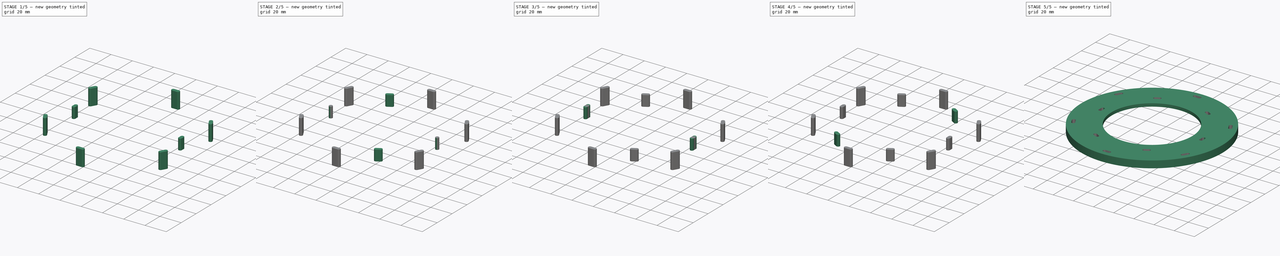
[diagram: build sequence overview — one tinted view per stage of 5, left to right]
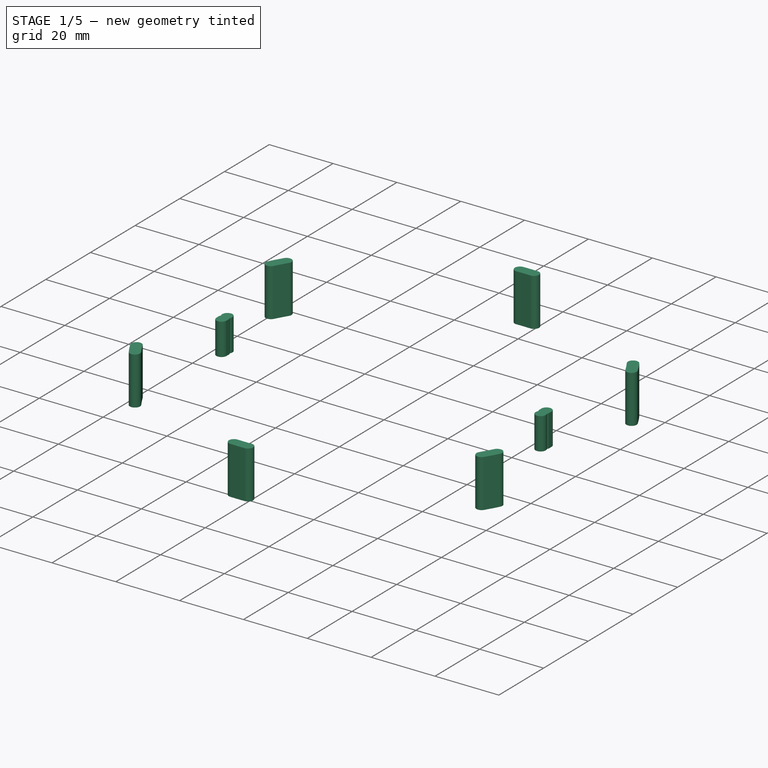
[diagram: stage 1 of 5 — iso view after this stage's code; geometry added in this stage tinted green]
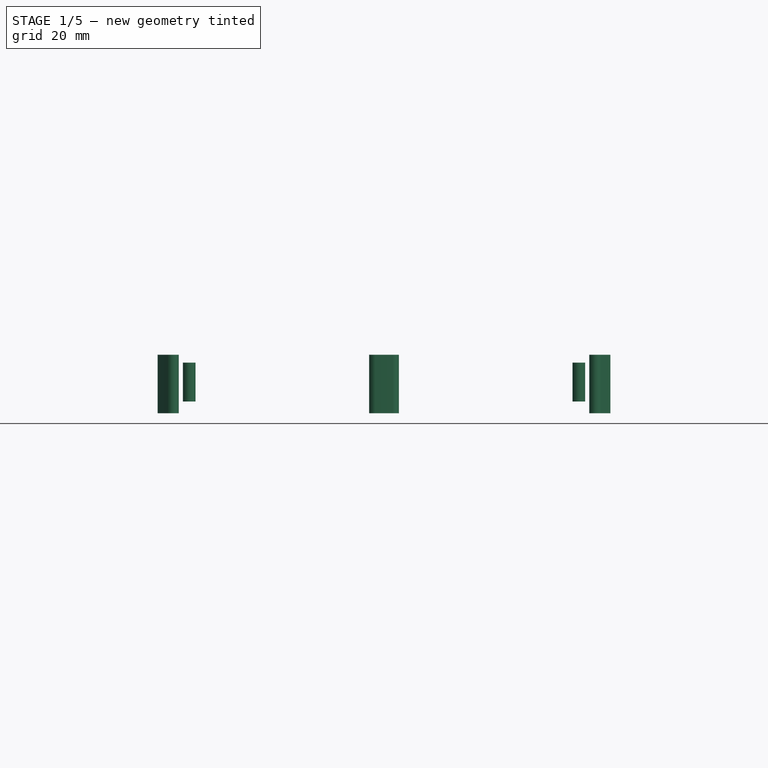
[diagram: stage 1 of 5 — front view after this stage's code; geometry added in this stage tinted green]
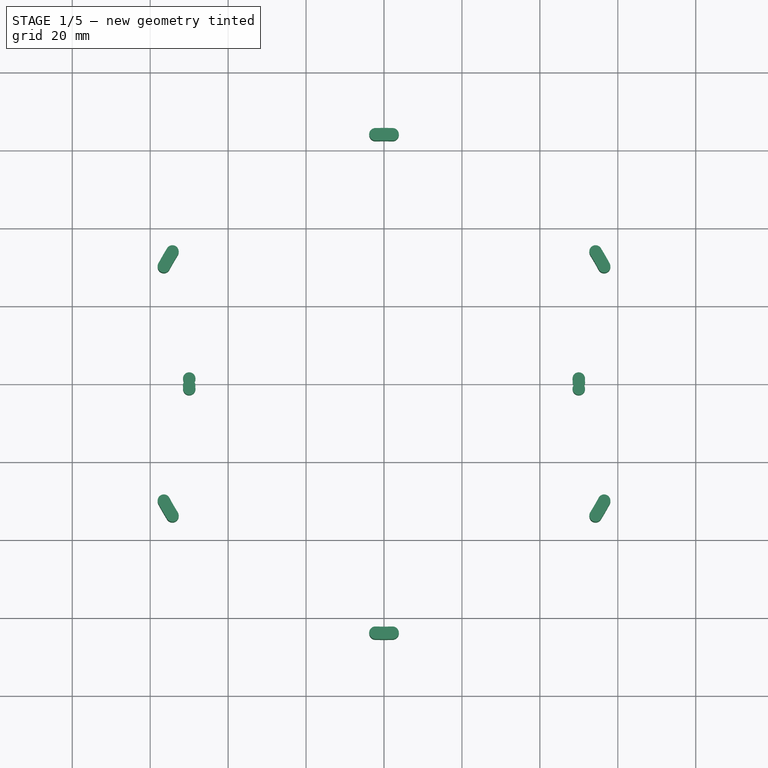
[diagram: stage 1 of 5 — top view after this stage's code; geometry added in this stage tinted green]
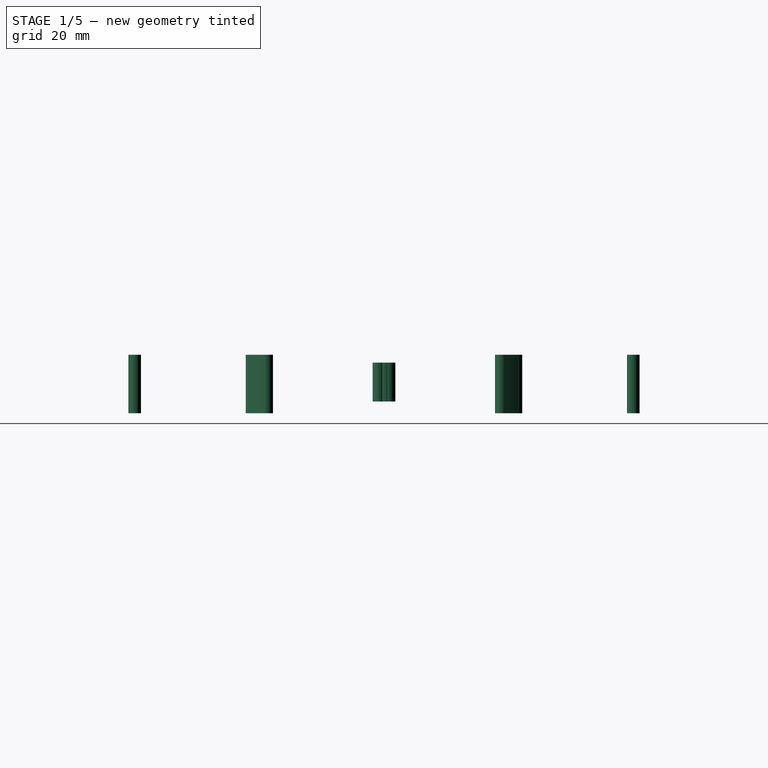
[diagram: stage 1 of 5 — right view after this stage's code; geometry added in this stage tinted green]
FCSTD DOCUMENT  (FreeCAD 0.15R4671 (Git))
Label: frame_rigid_mount
License: All rights reserved
LicenseURL: http://en.wikipedia.org/wiki/All_rights_reserved
objects: Part::Cylinder×51, Part::MultiFuse×34, Sketcher::SketchObject×3, Part::Extrusion×3, Part::Mirroring×3, Part::Cut×2
note: 96 computed .brp shape members not serialized (recipe doc carries the construction recipe); baked Part::Feature solids carry a one-line shape summary decoded from their .brp

FEATURE [Part::Cylinder] Cylinder043
  Angle = 360
  Height = 10
  Placement = pos=(50,0,-2) rot=(0,0,1;0rad)
  Radius = 1.6
FEATURE [Part::Cylinder] Cylinder044
  Angle = 360
  Height = 10
  Placement = pos=(-50,0,-2) rot=(0,0,1;0rad)
  Radius = 1.6
FEATURE [Part::MultiFuse] Fusion023
  Placement = pos=(0,0,0) rot=(0,0,-1;0.02618rad)
  Shapes = -> [Cylinder043,Cylinder044]
FEATURE [Part::Cylinder] Cylinder045
  Angle = 360
  Height = 10
  Placement = pos=(50,0,-2) rot=(0,0,1;0rad)
  Radius = 1.6
FEATURE [Part::Cylinder] Cylinder046
  Angle = 360
  Height = 10
  Placement = pos=(-50,0,-2) rot=(0,0,1;0rad)
  Radius = 1.6
FEATURE [Part::MultiFuse] Fusion024
  Placement = pos=(0,0,0) rot=(0,0,1;0.02618rad)
  Shapes = -> [Cylinder045,Cylinder046]
FEATURE [Part::Cylinder] Cylinder047
  Angle = 360
  Height = 10
  Placement = pos=(50,0,-2) rot=(0,0,1;0rad)
  Radius = 1.6
FEATURE [Part::Cylinder] Cylinder048
  Angle = 360
  Height = 10
  Placement = pos=(-50,0,-2) rot=(0,0,1;0rad)
  Radius = 1.6
FEATURE [Part::MultiFuse] Fusion025
  Placement = pos=(0,0,0) rot=(0,0,1;0.008727rad)
  Shapes = -> [Cylinder047,Cylinder048]
FEATURE [Sketcher::SketchObject] Sketch
  Placement = pos=(0,0,10) rot=(0,0,1;0rad)
  sketch-geometry (4):
    g0: ArcOfCircle CenterX=75 CenterY=0 CenterZ=0 NormalX=0 NormalY=0 NormalZ=1 Radius=65.6 StartAngle=3.10935 EndAngle=3.17384
    g1: ArcOfCircle CenterX=75 CenterY=0 CenterZ=0 NormalX=0 NormalY=0 NormalZ=1 Radius=62.4 StartAngle=3.10503 EndAngle=3.17816
    g2: ArcOfCircle CenterX=11.0378 CenterY=2.2 CenterZ=0 NormalX=0 NormalY=0 NormalZ=1 Radius=1.60597 StartAngle=0.0506133 EndAngle=3.19471
    g3: ArcOfCircle CenterX=11.0378 CenterY=-2.2 CenterZ=0 NormalX=0 NormalY=0 NormalZ=1 Radius=1.60597 StartAngle=3.08848 EndAngle=6.23257
  constraints (16):
    c: DistanceY(g0) = 0
    c: DistanceX(g0) = 75
    c: Radius(g0) = 65.6
    c: DistanceY(g1) = 0
    c: DistanceX(g1) = 75
    c: Radius(g1) = 62.4
    c: Coincident(g2,g0)
    c: Coincident(g2,g1)
    c: DistanceY(g2) = 2.2
    c: DistanceX(g2) = 11.0378
    c: Coincident(g3,g0)
    c: Coincident(g3,g1)
    c: DistanceY(g3) = -2.2
    c: DistanceX(g3) = 11.0378
    c: Radius(g3) = 1.60597
    c: Radius(g2) = 1.60597
FEATURE [Part::Extrusion] Extrude
  Base = -> Sketch
  Dir = (0,0,-15)
  Placement = pos=(-75,0,0) rot=(0,0,1;0rad)
  Solid = true
FEATURE [Part::Mirroring] Part__Mirroring  label="Extrude (Mirror #1)"
  Base = (0,0,0)
  Normal = (1,0,0)
  Source = -> Extrude
FEATURE [Part::MultiFuse] Fusion029
  Shapes = -> [Part__Mirroring,Extrude]
FEATURE [Sketcher::SketchObject] Sketch001
  Placement = pos=(0,0,10) rot=(0,0,1;0rad)
  sketch-geometry (4):
    g0: ArcOfCircle CenterX=75 CenterY=0 CenterZ=0 NormalX=0 NormalY=0 NormalZ=1 Radius=65.6 StartAngle=3.10935 EndAngle=3.17384
    g1: ArcOfCircle CenterX=75 CenterY=0 CenterZ=0 NormalX=0 NormalY=0 NormalZ=1 Radius=62.4 StartAngle=3.10503 EndAngle=3.17816
    g2: ArcOfCircle CenterX=11.0378 CenterY=2.2 CenterZ=0 NormalX=0 NormalY=0 NormalZ=1 Radius=1.60597 StartAngle=0.0506133 EndAngle=3.19471
    g3: ArcOfCircle CenterX=11.0378 CenterY=-2.2 CenterZ=0 NormalX=0 NormalY=0 NormalZ=1 Radius=1.60597 StartAngle=3.08848 EndAngle=6.23257
  constraints (16):
    c: DistanceY(g0) = 0
    c: DistanceX(g0) = 75
    c: Radius(g0) = 65.6
    c: DistanceY(g1) = 0
    c: DistanceX(g1) = 75
    c: Radius(g1) = 62.4
    c: Coincident(g2,g0)
    c: Coincident(g2,g1)
    c: DistanceY(g2) = 2.2
    c: DistanceX(g2) = 11.0378
    c: Coincident(g3,g0)
    c: Coincident(g3,g1)
    c: DistanceY(g3) = -2.2
    c: DistanceX(g3) = 11.0378
    c: Radius(g3) = 1.60597
    c: Radius(g2) = 1.60597
FEATURE [Part::Extrusion] Extrude001
  Base = -> Sketch001
  Dir = (0,0,-15)
  Placement = pos=(-75,0,0) rot=(0,0,1;0rad)
  Solid = true
FEATURE [Part::Mirroring] Part__Mirroring001  label="Extrude (Mirror #1)001"
  Base = (0,0,0)
  Normal = (1,0,0)
  Source = -> Extrude001
FEATURE [Part::MultiFuse] Fusion030
  Placement = pos=(0,0,0) rot=(0,0,1;1.0472rad)
  Shapes = -> [Part__Mirroring001,Extrude001]
FEATURE [Sketcher::SketchObject] Sketch002
  Placement = pos=(0,0,10) rot=(0,0,1;0rad)
  sketch-geometry (4):
    g0: ArcOfCircle CenterX=75 CenterY=0 CenterZ=0 NormalX=0 NormalY=0 NormalZ=1 Radius=65.6 StartAngle=3.10935 EndAngle=3.17384
    g1: ArcOfCircle CenterX=75 CenterY=0 CenterZ=0 NormalX=0 NormalY=0 NormalZ=1 Radius=62.4 StartAngle=3.10503 EndAngle=3.17816
    g2: ArcOfCircle CenterX=11.0378 CenterY=2.2 CenterZ=0 NormalX=0 NormalY=0 NormalZ=1 Radius=1.60597 StartAngle=0.0506133 EndAngle=3.19471
    g3: ArcOfCircle CenterX=11.0378 CenterY=-2.2 CenterZ=0 NormalX=0 NormalY=0 NormalZ=1 Radius=1.60597 StartAngle=3.08848 EndAngle=6.23257
  constraints (16):
    c: DistanceY(g0) = 0
    c: DistanceX(g0) = 75
    c: Radius(g0) = 65.6
    c: DistanceY(g1) = 0
    c: DistanceX(g1) = 75
    c: Radius(g1) = 62.4
    c: Coincident(g2,g0)
    c: Coincident(g2,g1)
    c: DistanceY(g2) = 2.2
    c: DistanceX(g2) = 11.0378
    c: Coincident(g3,g0)
    c: Coincident(g3,g1)
    c: DistanceY(g3) = -2.2
    c: DistanceX(g3) = 11.0378
    c: Radius(g3) = 1.60597
    c: Radius(g2) = 1.60597
FEATURE [Part::Extrusion] Extrude002
  Base = -> Sketch002
  Dir = (0,0,-15)
  Placement = pos=(-75,0,0) rot=(0,0,1;0rad)
  Solid = true
FEATURE [Part::Mirroring] Part__Mirroring002  label="Extrude (Mirror #1)002"
  Base = (0,0,0)
  Normal = (1,0,0)
  Source = -> Extrude002
FEATURE [Part::MultiFuse] Fusion031
  Placement = pos=(0,0,0) rot=(0,0,1;2.0944rad)
  Shapes = -> [Part__Mirroring002,Extrude002]
FEATURE [Part::MultiFuse] Fusion032
  Placement = pos=(0,0,0) rot=(0,0,1;0.523599rad)
  Shapes = -> [Fusion029,Fusion030,Fusion031]
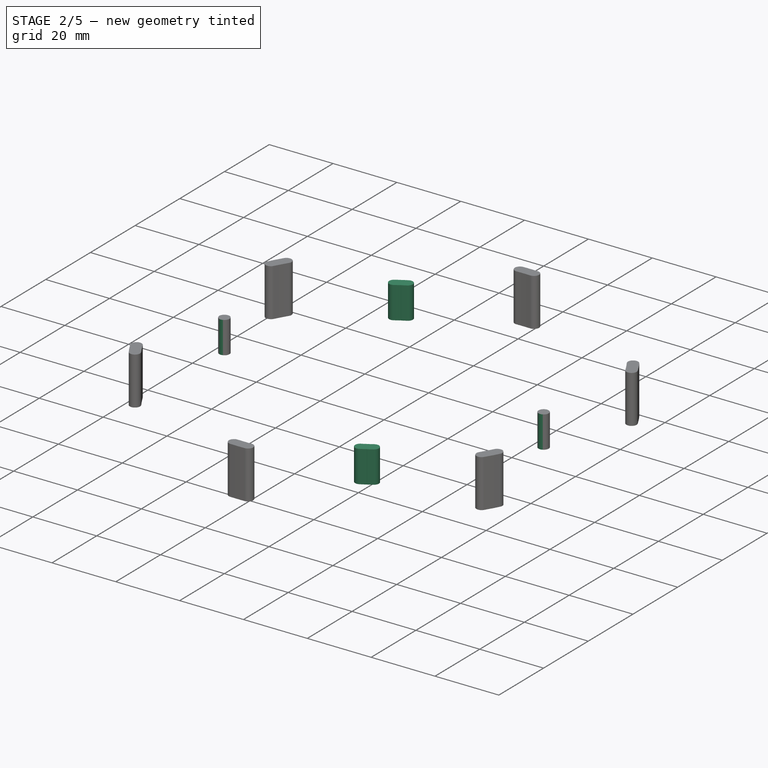
[diagram: stage 2 of 5 — iso view after this stage's code; geometry added in this stage tinted green]
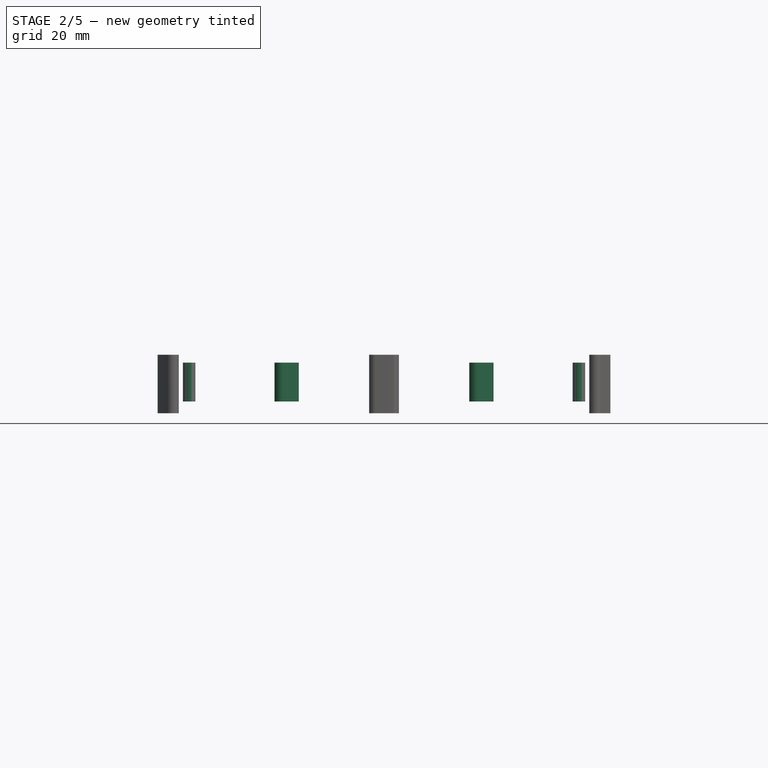
[diagram: stage 2 of 5 — front view after this stage's code; geometry added in this stage tinted green]
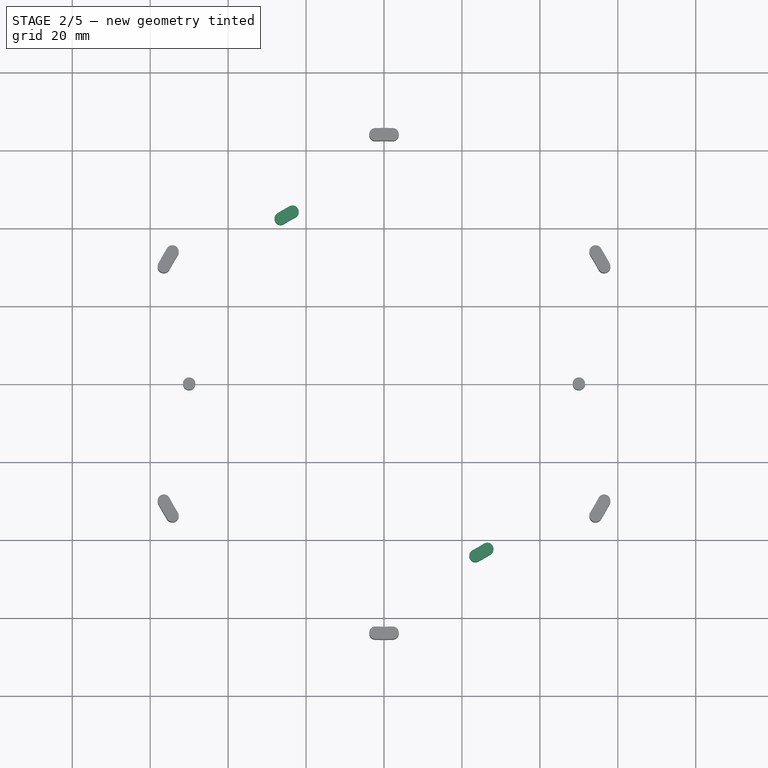
[diagram: stage 2 of 5 — top view after this stage's code; geometry added in this stage tinted green]
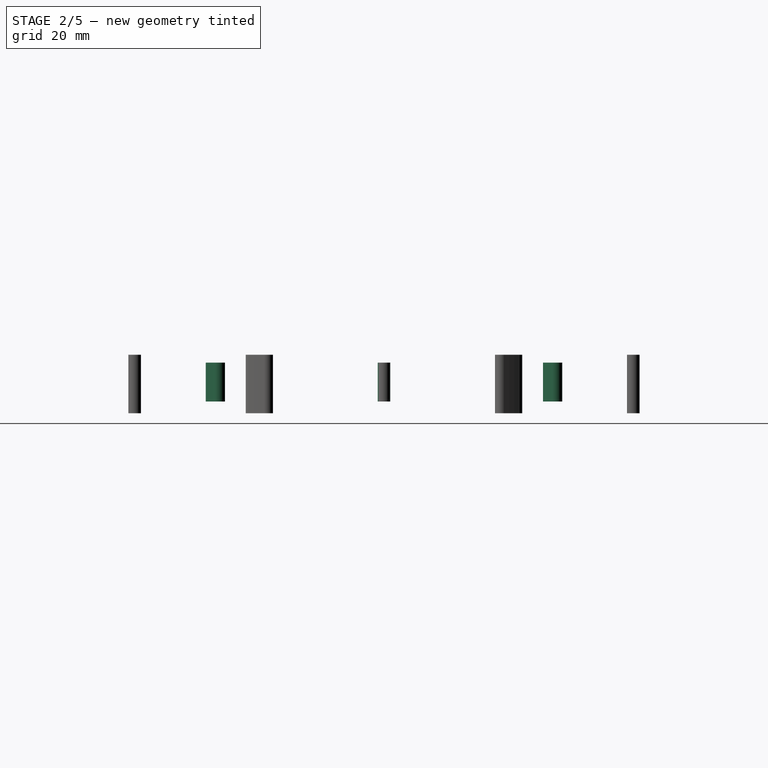
[diagram: stage 2 of 5 — right view after this stage's code; geometry added in this stage tinted green]
FEATURE [Part::Cylinder] Cylinder031
  Angle = 360
  Height = 10
  Placement = pos=(50,0,-2) rot=(0,0,1;0rad)
  Radius = 1.6
FEATURE [Part::Cylinder] Cylinder032
  Angle = 360
  Height = 10
  Placement = pos=(-50,0,-2) rot=(0,0,1;0rad)
  Radius = 1.6
FEATURE [Part::Cylinder] Cylinder033
  Angle = 360
  Height = 10
  Placement = pos=(50,0,-2) rot=(0,0,1;0rad)
  Radius = 1.6
FEATURE [Part::Cylinder] Cylinder034
  Angle = 360
  Height = 10
  Placement = pos=(-50,0,-2) rot=(0,0,1;0rad)
  Radius = 1.6
FEATURE [Part::MultiFuse] Fusion018
  Placement = pos=(0,0,0) rot=(0,0,1;0.017453rad)
  Shapes = -> [Cylinder033,Cylinder034]
FEATURE [Part::Cylinder] Cylinder035
  Angle = 360
  Height = 10
  Placement = pos=(50,0,-2) rot=(0,0,1;0rad)
  Radius = 1.6
FEATURE [Part::Cylinder] Cylinder036
  Angle = 360
  Height = 10
  Placement = pos=(-50,0,-2) rot=(0,0,1;0rad)
  Radius = 1.6
FEATURE [Part::MultiFuse] Fusion019
  Placement = pos=(0,0,0) rot=(0,0,1;0.034907rad)
  Shapes = -> [Cylinder035,Cylinder036]
FEATURE [Part::Cylinder] Cylinder037
  Angle = 360
  Height = 10
  Placement = pos=(50,0,-2) rot=(0,0,1;0rad)
  Radius = 1.6
FEATURE [Part::Cylinder] Cylinder038
  Angle = 360
  Height = 10
  Placement = pos=(-50,0,-2) rot=(0,0,1;0rad)
  Radius = 1.6
FEATURE [Part::MultiFuse] Fusion020
  Placement = pos=(0,0,0) rot=(0,0,-1;0.017453rad)
  Shapes = -> [Cylinder037,Cylinder038]
FEATURE [Part::Cylinder] Cylinder039
  Angle = 360
  Height = 10
  Placement = pos=(50,0,-2) rot=(0,0,1;0rad)
  Radius = 1.6
FEATURE [Part::Cylinder] Cylinder040
  Angle = 360
  Height = 10
  Placement = pos=(-50,0,-2) rot=(0,0,1;0rad)
  Radius = 1.6
FEATURE [Part::MultiFuse] Fusion021
  Placement = pos=(0,0,0) rot=(0,0,-1;0.034907rad)
  Shapes = -> [Cylinder039,Cylinder040]
FEATURE [Part::Cylinder] Cylinder041
  Angle = 360
  Height = 10
  Placement = pos=(50,0,-2) rot=(0,0,1;0rad)
  Radius = 1.6
FEATURE [Part::Cylinder] Cylinder042
  Angle = 360
  Height = 10
  Placement = pos=(-50,0,-2) rot=(0,0,1;0rad)
  Radius = 1.6
FEATURE [Part::MultiFuse] Fusion022
  Placement = pos=(0,0,0) rot=(0,0,-1;0.008727rad)
  Shapes = -> [Cylinder041,Cylinder042]
FEATURE [Part::MultiFuse] Fusion026
  Placement = pos=(0,0,0) rot=(0,0,1;2.0944rad)
  Shapes = -> [Fusion021,Fusion024,Fusion019,Fusion023,Fusion020,Fusion022,Fusion018,Fusion025]
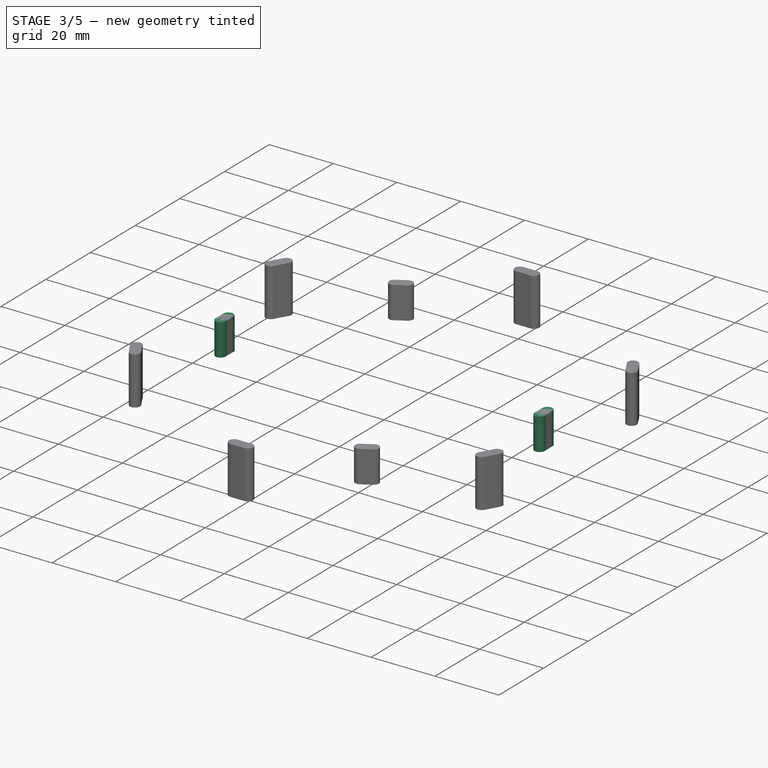
[diagram: stage 3 of 5 — iso view after this stage's code; geometry added in this stage tinted green]
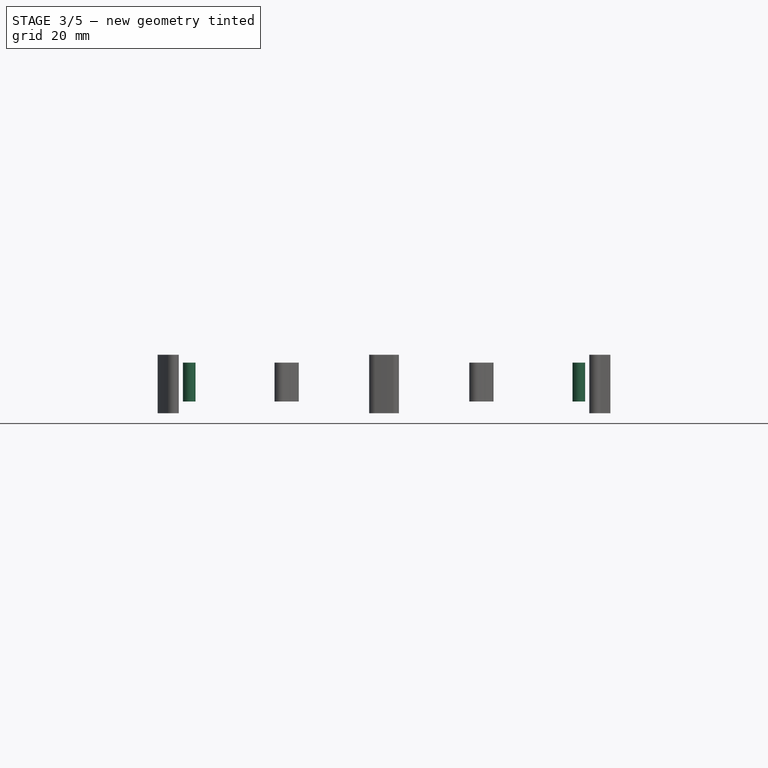
[diagram: stage 3 of 5 — front view after this stage's code; geometry added in this stage tinted green]
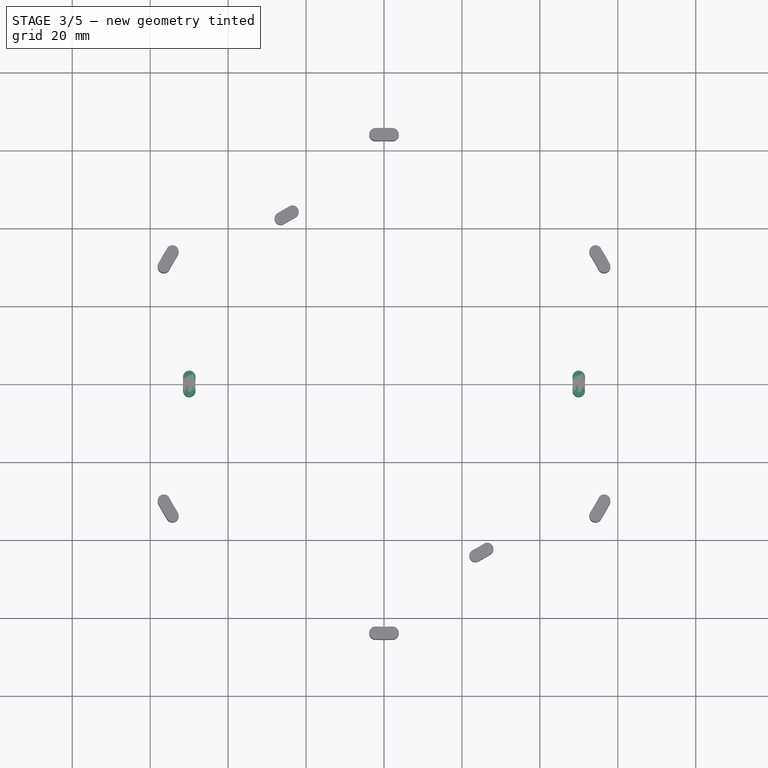
[diagram: stage 3 of 5 — top view after this stage's code; geometry added in this stage tinted green]
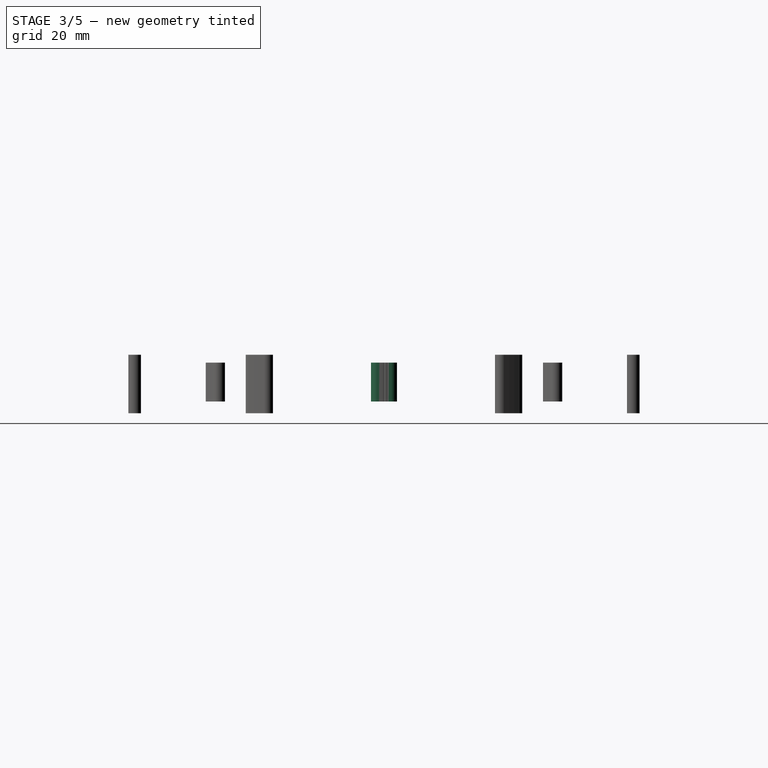
[diagram: stage 3 of 5 — right view after this stage's code; geometry added in this stage tinted green]
FEATURE [Part::Cylinder] Cylinder019
  Angle = 360
  Height = 10
  Placement = pos=(50,0,-2) rot=(0,0,1;0rad)
  Radius = 1.6
FEATURE [Part::Cylinder] Cylinder020
  Angle = 360
  Height = 10
  Placement = pos=(-50,0,-2) rot=(0,0,1;0rad)
  Radius = 1.6
FEATURE [Part::MultiFuse] Fusion010
  Placement = pos=(0,0,0) rot=(0,0,1;0.034907rad)
  Shapes = -> [Cylinder019,Cylinder020]
FEATURE [Part::Cylinder] Cylinder021
  Angle = 360
  Height = 10
  Placement = pos=(50,0,-2) rot=(0,0,1;0rad)
  Radius = 1.6
FEATURE [Part::Cylinder] Cylinder022
  Angle = 360
  Height = 10
  Placement = pos=(-50,0,-2) rot=(0,0,1;0rad)
  Radius = 1.6
FEATURE [Part::MultiFuse] Fusion011
  Placement = pos=(0,0,0) rot=(0,0,-1;0.017453rad)
  Shapes = -> [Cylinder021,Cylinder022]
FEATURE [Part::Cylinder] Cylinder023
  Angle = 360
  Height = 10
  Placement = pos=(50,0,-2) rot=(0,0,1;0rad)
  Radius = 1.6
FEATURE [Part::Cylinder] Cylinder024
  Angle = 360
  Height = 10
  Placement = pos=(-50,0,-2) rot=(0,0,1;0rad)
  Radius = 1.6
FEATURE [Part::MultiFuse] Fusion012
  Placement = pos=(0,0,0) rot=(0,0,-1;0.034907rad)
  Shapes = -> [Cylinder023,Cylinder024]
FEATURE [Part::Cylinder] Cylinder025
  Angle = 360
  Height = 10
  Placement = pos=(50,0,-2) rot=(0,0,1;0rad)
  Radius = 1.6
FEATURE [Part::Cylinder] Cylinder026
  Angle = 360
  Height = 10
  Placement = pos=(-50,0,-2) rot=(0,0,1;0rad)
  Radius = 1.6
FEATURE [Part::MultiFuse] Fusion013
  Placement = pos=(0,0,0) rot=(0,0,-1;0.008727rad)
  Shapes = -> [Cylinder025,Cylinder026]
FEATURE [Part::Cylinder] Cylinder027
  Angle = 360
  Height = 10
  Placement = pos=(50,0,-2) rot=(0,0,1;0rad)
  Radius = 1.6
FEATURE [Part::Cylinder] Cylinder028
  Angle = 360
  Height = 10
  Placement = pos=(-50,0,-2) rot=(0,0,1;0rad)
  Radius = 1.6
FEATURE [Part::MultiFuse] Fusion014
  Placement = pos=(0,0,0) rot=(0,0,-1;0.02618rad)
  Shapes = -> [Cylinder027,Cylinder028]
FEATURE [Part::Cylinder] Cylinder029
  Angle = 360
  Height = 10
  Placement = pos=(50,0,-2) rot=(0,0,1;0rad)
  Radius = 1.6
FEATURE [Part::Cylinder] Cylinder030
  Angle = 360
  Height = 10
  Placement = pos=(-50,0,-2) rot=(0,0,1;0rad)
  Radius = 1.6
FEATURE [Part::MultiFuse] Fusion015
  Placement = pos=(0,0,0) rot=(0,0,1;0.02618rad)
  Shapes = -> [Cylinder029,Cylinder030]
FEATURE [Part::MultiFuse] Fusion016
  Placement = pos=(0,0,0) rot=(0,0,1;0.008727rad)
  Shapes = -> [Cylinder031,Cylinder032]
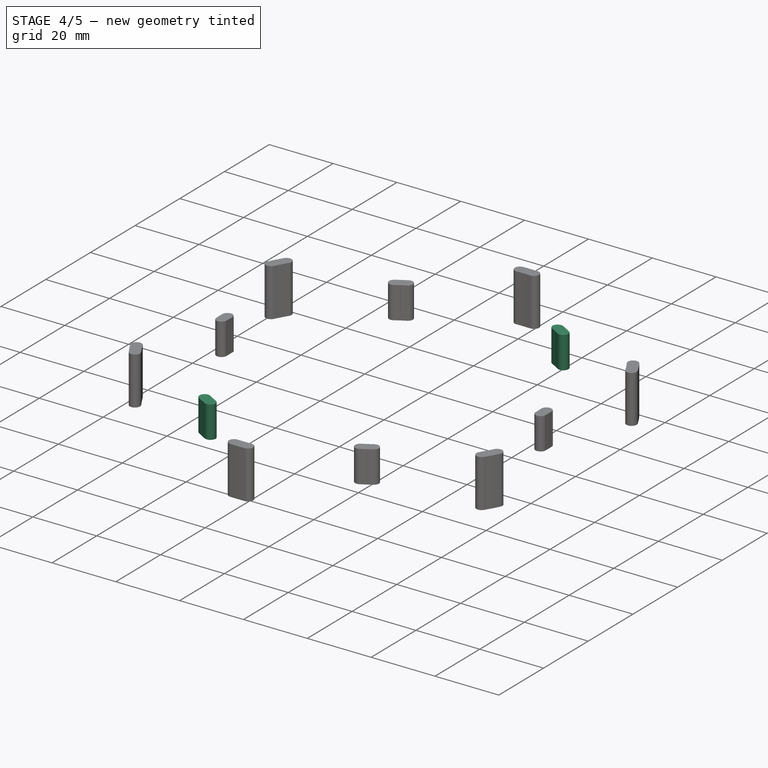
[diagram: stage 4 of 5 — iso view after this stage's code; geometry added in this stage tinted green]
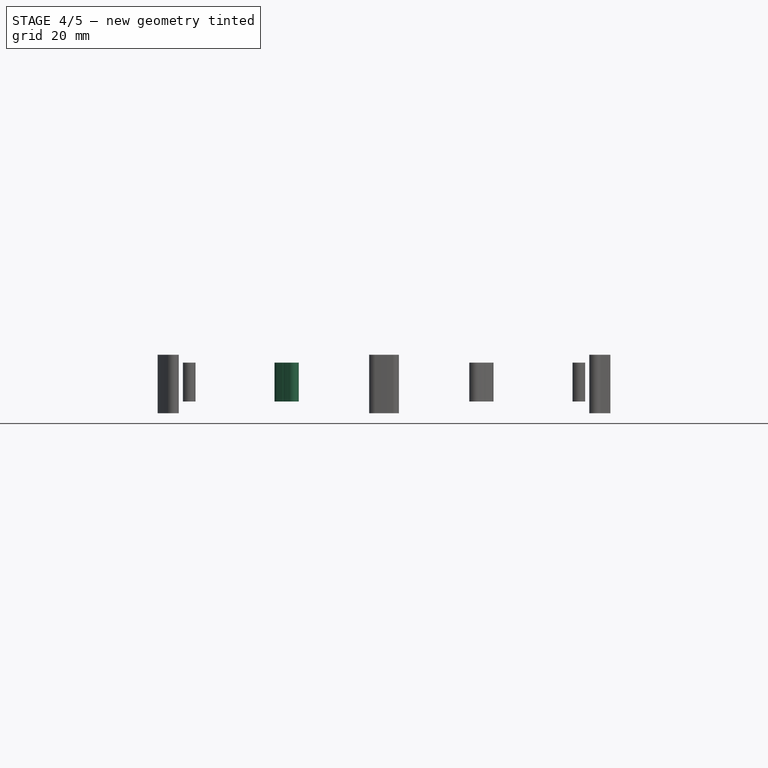
[diagram: stage 4 of 5 — front view after this stage's code; geometry added in this stage tinted green]
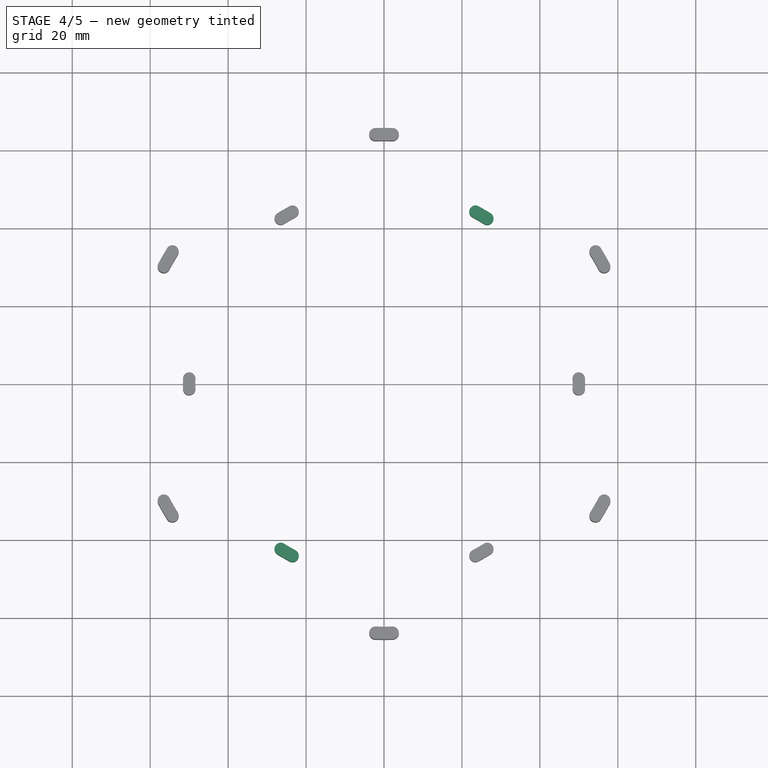
[diagram: stage 4 of 5 — top view after this stage's code; geometry added in this stage tinted green]
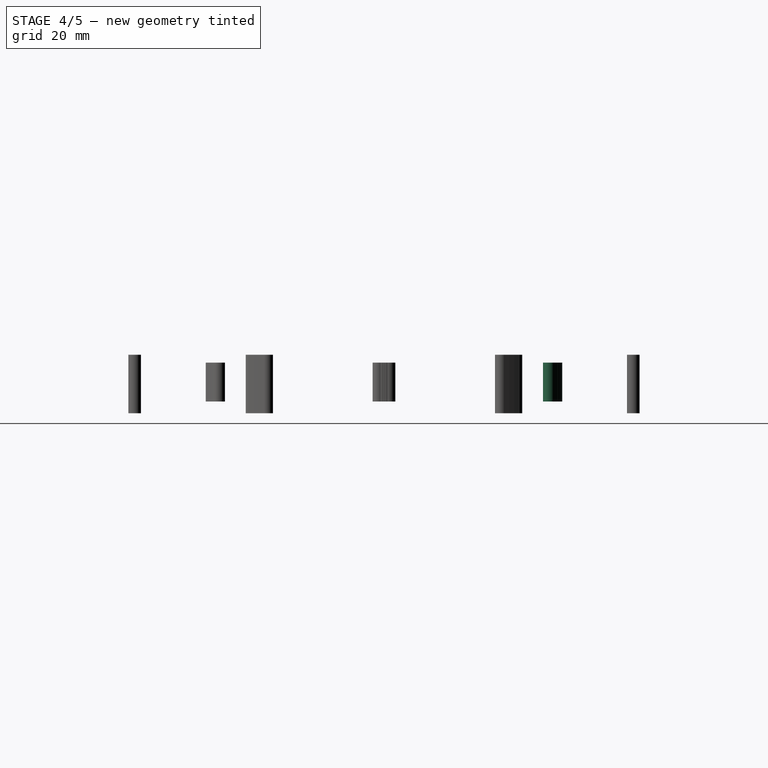
[diagram: stage 4 of 5 — right view after this stage's code; geometry added in this stage tinted green]
FEATURE [Part::Cylinder] Cylinder007
  Angle = 360
  Height = 10
  Placement = pos=(50,0,-2) rot=(0,0,1;0rad)
  Radius = 1.6
FEATURE [Part::Cylinder] Cylinder008
  Angle = 360
  Height = 10
  Placement = pos=(-50,0,-2) rot=(0,0,1;0rad)
  Radius = 1.6
FEATURE [Part::Cylinder] Cylinder009
  Angle = 360
  Height = 10
  Placement = pos=(50,0,-2) rot=(0,0,1;0rad)
  Radius = 1.6
FEATURE [Part::Cylinder] Cylinder010
  Angle = 360
  Height = 10
  Placement = pos=(-50,0,-2) rot=(0,0,1;0rad)
  Radius = 1.6
FEATURE [Part::MultiFuse] Fusion004
  Placement = pos=(0,0,0) rot=(0,0,-1;0.008727rad)
  Shapes = -> [Cylinder009,Cylinder010]
FEATURE [Part::Cylinder] Cylinder011
  Angle = 360
  Height = 10
  Placement = pos=(50,0,-2) rot=(0,0,1;0rad)
  Radius = 1.6
FEATURE [Part::Cylinder] Cylinder012
  Angle = 360
  Height = 10
  Placement = pos=(-50,0,-2) rot=(0,0,1;0rad)
  Radius = 1.6
FEATURE [Part::MultiFuse] Fusion005
  Placement = pos=(0,0,0) rot=(0,0,-1;0.02618rad)
  Shapes = -> [Cylinder011,Cylinder012]
FEATURE [Part::Cylinder] Cylinder013
  Angle = 360
  Height = 10
  Placement = pos=(50,0,-2) rot=(0,0,1;0rad)
  Radius = 1.6
FEATURE [Part::Cylinder] Cylinder014
  Angle = 360
  Height = 10
  Placement = pos=(-50,0,-2) rot=(0,0,1;0rad)
  Radius = 1.6
FEATURE [Part::MultiFuse] Fusion006
  Placement = pos=(0,0,0) rot=(0,0,1;0.02618rad)
  Shapes = -> [Cylinder013,Cylinder014]
FEATURE [Part::Cylinder] Cylinder015
  Angle = 360
  Height = 10
  Placement = pos=(50,0,-2) rot=(0,0,1;0rad)
  Radius = 1.6
FEATURE [Part::Cylinder] Cylinder016
  Angle = 360
  Height = 10
  Placement = pos=(-50,0,-2) rot=(0,0,1;0rad)
  Radius = 1.6
FEATURE [Part::MultiFuse] Fusion007
  Placement = pos=(0,0,0) rot=(0,0,1;0.008727rad)
  Shapes = -> [Cylinder015,Cylinder016]
FEATURE [Part::Cylinder] Cylinder017
  Angle = 360
  Height = 10
  Placement = pos=(50,0,-2) rot=(0,0,1;0rad)
  Radius = 1.6
FEATURE [Part::Cylinder] Cylinder018
  Angle = 360
  Height = 10
  Placement = pos=(-50,0,-2) rot=(0,0,1;0rad)
  Radius = 1.6
FEATURE [Part::MultiFuse] Fusion009
  Placement = pos=(0,0,0) rot=(0,0,1;0.017453rad)
  Shapes = -> [Cylinder017,Cylinder018]
FEATURE [Part::MultiFuse] Fusion017
  Placement = pos=(0,0,0) rot=(0,0,1;1.0472rad)
  Shapes = -> [Fusion012,Fusion015,Fusion010,Fusion014,Fusion011,Fusion013,Fusion009,Fusion016]
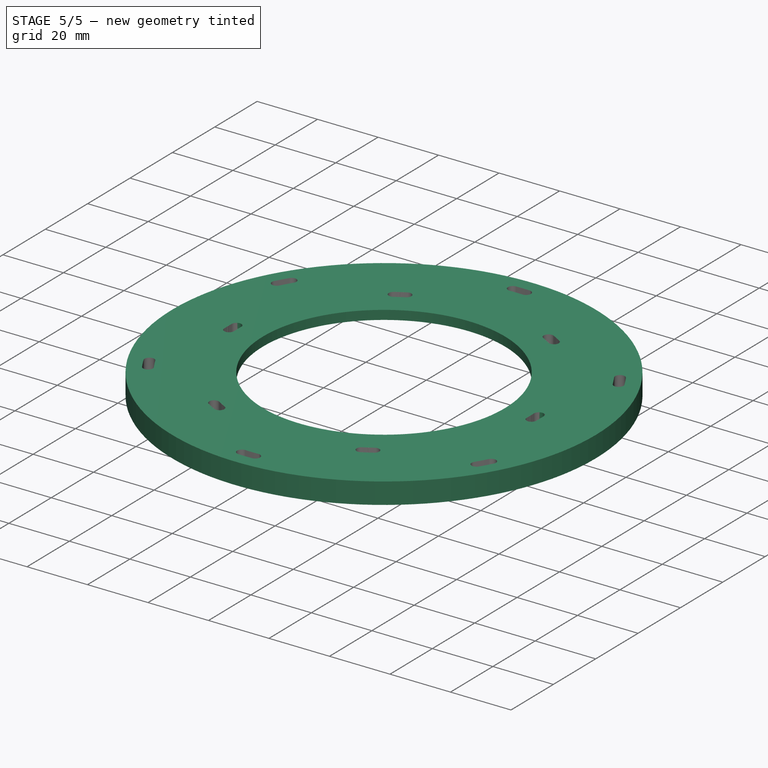
[diagram: stage 5 of 5 — iso view after this stage's code; geometry added in this stage tinted green]
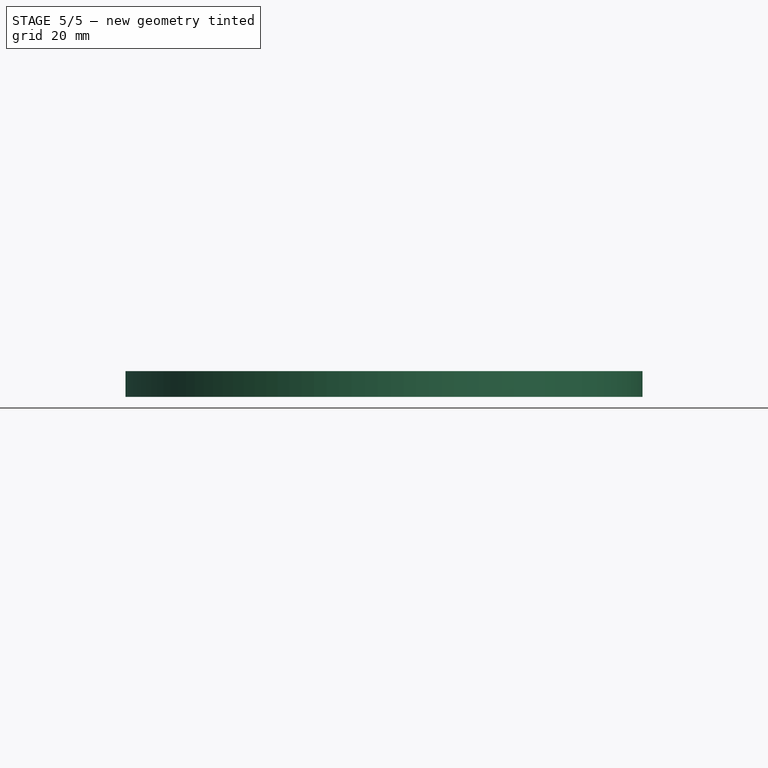
[diagram: stage 5 of 5 — front view after this stage's code; geometry added in this stage tinted green]
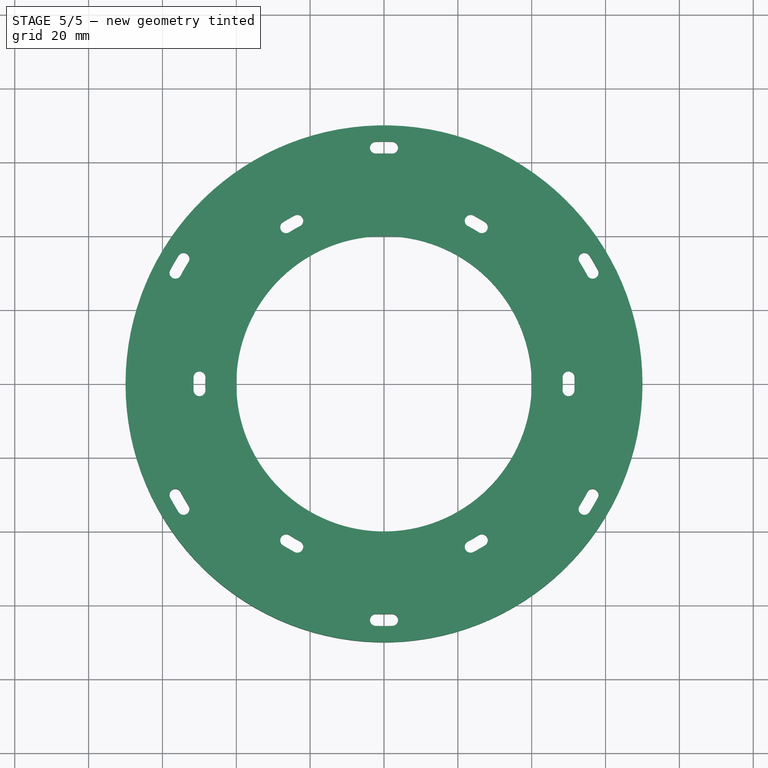
[diagram: stage 5 of 5 — top view after this stage's code; geometry added in this stage tinted green]
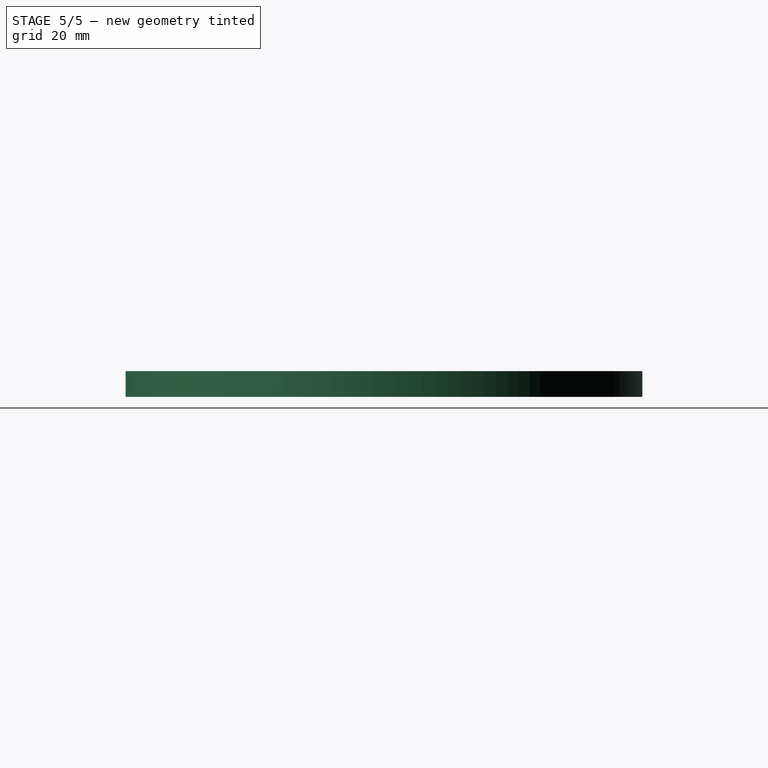
[diagram: stage 5 of 5 — right view after this stage's code; geometry added in this stage tinted green]
FEATURE [Part::Cylinder] Cylinder
  Angle = 360
  Height = 7
  Radius = 70
FEATURE [Part::Cylinder] Cylinder001
  Angle = 360
  Height = 10
  Placement = pos=(50,0,-2) rot=(0,0,1;0rad)
  Radius = 1.6
FEATURE [Part::Cylinder] Cylinder002
  Angle = 360
  Height = 10
  Placement = pos=(-50,0,-2) rot=(0,0,1;0rad)
  Radius = 1.6
FEATURE [Part::MultiFuse] Fusion
  Placement = pos=(0,0,0) rot=(0,0,1;0.017453rad)
  Shapes = -> [Cylinder001,Cylinder002]
FEATURE [Part::Cylinder] Cylinder003
  Angle = 360
  Height = 10
  Placement = pos=(50,0,-2) rot=(0,0,1;0rad)
  Radius = 1.6
FEATURE [Part::Cylinder] Cylinder004
  Angle = 360
  Height = 10
  Placement = pos=(-50,0,-2) rot=(0,0,1;0rad)
  Radius = 1.6
FEATURE [Part::MultiFuse] Fusion001
  Placement = pos=(0,0,0) rot=(0,0,1;0.034907rad)
  Shapes = -> [Cylinder003,Cylinder004]
FEATURE [Part::Cylinder] Cylinder005
  Angle = 360
  Height = 10
  Placement = pos=(50,0,-2) rot=(0,0,1;0rad)
  Radius = 1.6
FEATURE [Part::Cylinder] Cylinder006
  Angle = 360
  Height = 10
  Placement = pos=(-50,0,-2) rot=(0,0,1;0rad)
  Radius = 1.6
FEATURE [Part::MultiFuse] Fusion002
  Placement = pos=(0,0,0) rot=(0,0,-1;0.017453rad)
  Shapes = -> [Cylinder005,Cylinder006]
FEATURE [Part::MultiFuse] Fusion003
  Placement = pos=(0,0,0) rot=(0,0,-1;0.034907rad)
  Shapes = -> [Cylinder007,Cylinder008]
FEATURE [Part::MultiFuse] Fusion008
  Shapes = -> [Fusion003,Fusion006,Fusion001,Fusion005,Fusion002,Fusion004,Fusion,Fusion007]
FEATURE [Part::MultiFuse] Fusion027
  Shapes = -> [Fusion026,Fusion017,Fusion008]
FEATURE [Part::Cylinder] Cylinder049
  Angle = 360
  Height = 4
  Radius = 57
FEATURE [Part::Cylinder] Cylinder050
  Angle = 360
  Height = 7
  Radius = 40
FEATURE [Part::MultiFuse] Fusion028
  Shapes = -> [Cylinder050,Cylinder049]
FEATURE [Part::Cut] Cut
  Base = -> Cylinder
  Tool = -> Fusion028
FEATURE [Part::MultiFuse] Fusion033
  Shapes = -> [Fusion027,Fusion032]
FEATURE [Part::Cut] Cut001
  Base = -> Cut
  Tool = -> Fusion033
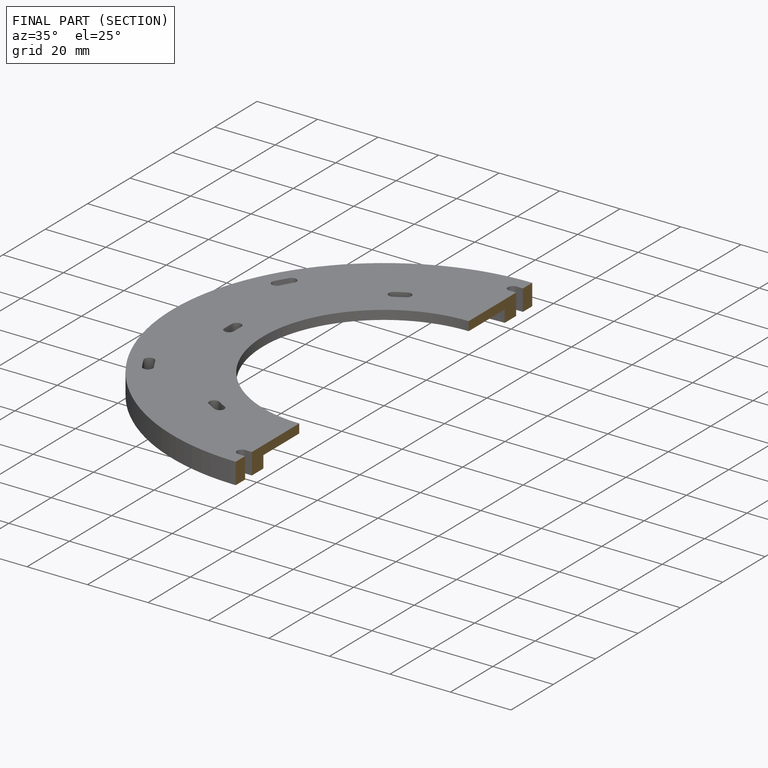
[diagram: finished part — half-section view (interior)]
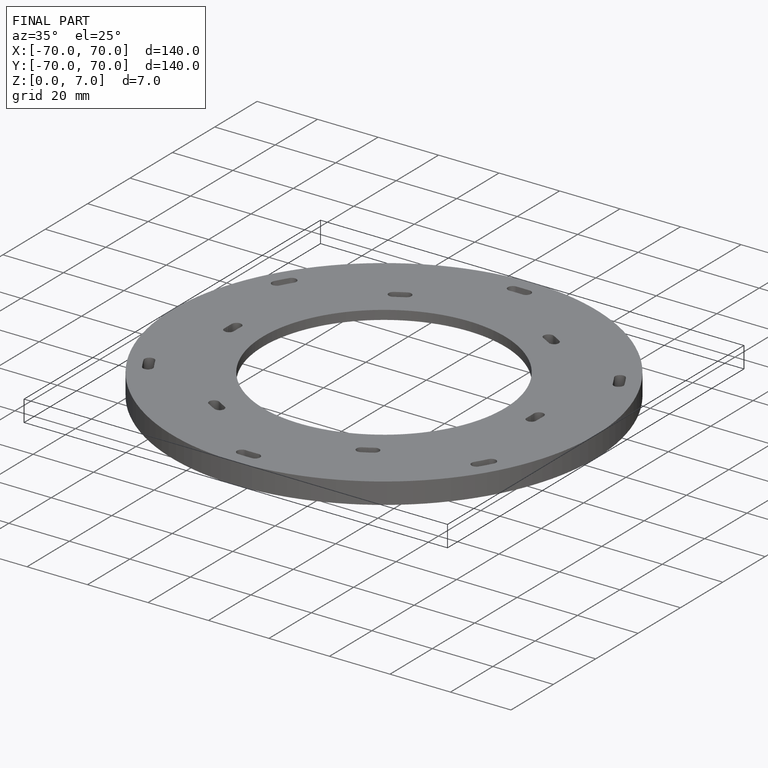
[diagram: finished part — iso view with bounding-box wireframe]
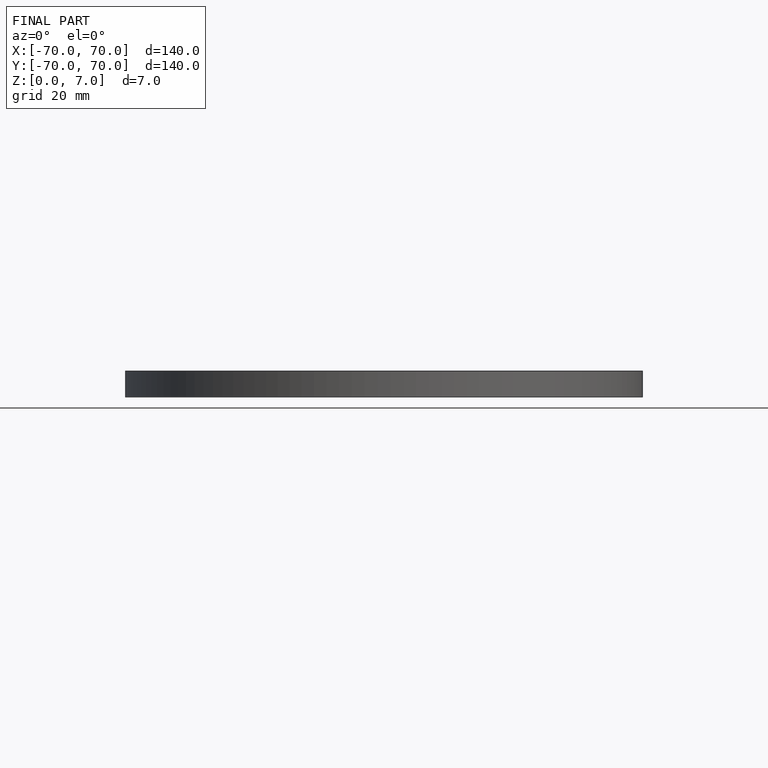
[diagram: finished part — front view with bounding-box wireframe]
